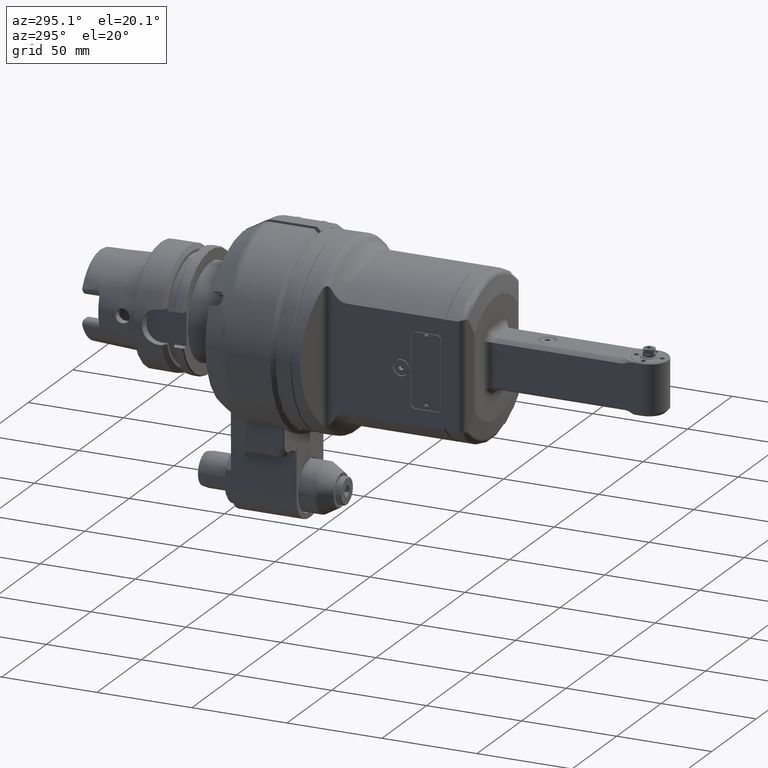
[diagram: clean part render]
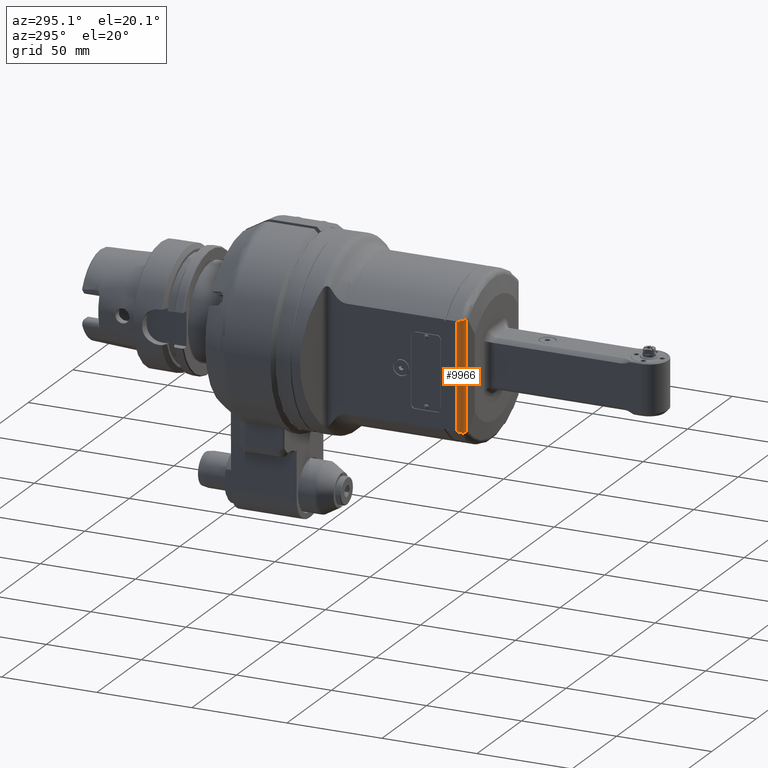
[diagram: same view with one face highlighted and labeled with its STEP entity id]
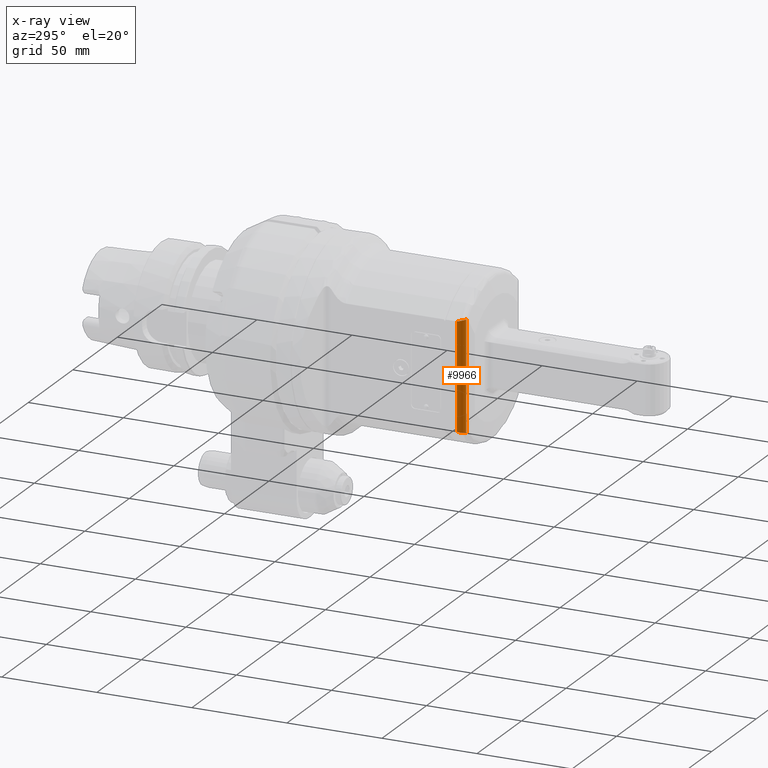
[diagram: x-ray of the same camera — body ghosted, the highlighted face saturated]
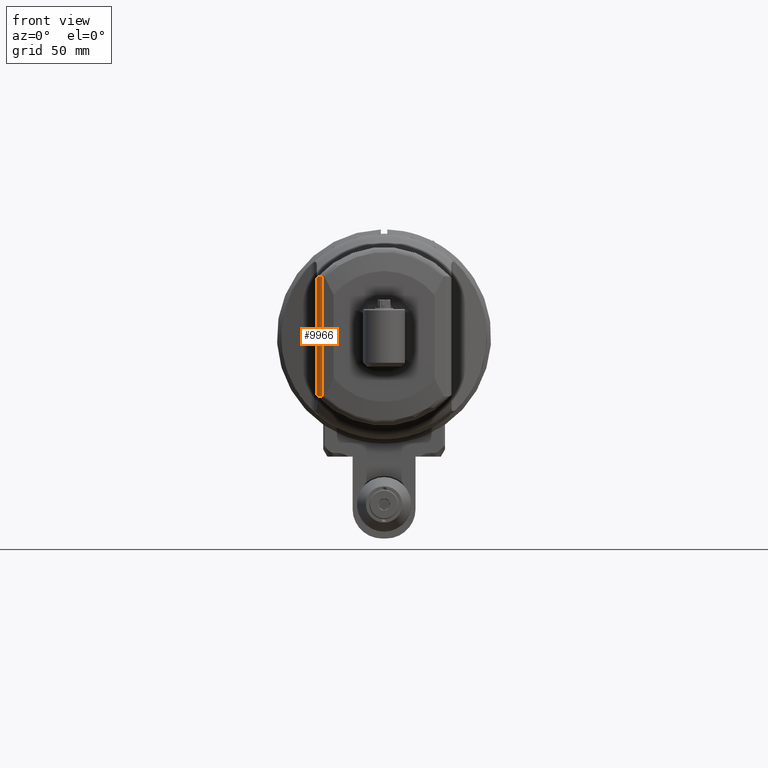
[diagram: same view with one face highlighted and labeled with its STEP entity id]
A machine part, auxiliary view. The second image highlights one B-rep face of the part: STEP entity #9966.
The next image is the same camera in x-ray: the body ghosted, the highlighted face saturated — about 0% of this face is hidden behind the body in this view.
A second angle (front view) of the same face is appended — the face is thin or edge-on in the first view.
In plain terms, the highlighted cylindrical surface (edge-blend (fillet) strip) has radius 4 mm, axis along (0, 0, 1).
Its self-contained STEP definition (entity closure, byte-faithful):
#1288=FACE_OUTER_BOUND('',#1913,.T.);
#1913=EDGE_LOOP('',(#8620,#8621,#8622,#8623,#8624,#8625));
#2682=B_SPLINE_CURVE_WITH_KNOTS('',3,(#58783,#58784,#58785,#58786,#58787,
#58788,#58789,#58790,#58791,#58792),.UNSPECIFIED.,.F.,.F.,(4,2,2,2,4),(3.13444354131986,
3.19139764599685,3.33701634573695,3.50794324143168,3.52444521729111),
 .UNSPECIFIED.);
#2683=B_SPLINE_CURVE_WITH_KNOTS('',3,(#58798,#58799,#58800,#58801,#58802,
#58803),.UNSPECIFIED.,.F.,.F.,(4,2,4),(0.,0.0756691090275133,0.12101803787132),
 .UNSPECIFIED.);
#2684=B_SPLINE_CURVE_WITH_KNOTS('',3,(#58804,#58805,#58806,#58807,#58808,
#58809,#58810,#58811,#58812,#58813),.UNSPECIFIED.,.F.,.F.,(4,2,2,2,4),(4.83732677407685,
4.90122347215597,5.05059715189319,5.14256174424367,5.23157631618292),
 .UNSPECIFIED.);
#2685=B_SPLINE_CURVE_WITH_KNOTS('',3,(#58814,#58815,#58816,#58817,#58818,
#58819),.UNSPECIFIED.,.F.,.F.,(4,2,4),(-2.83702620331015,-2.76135709428264,
-2.71600816543477),.UNSPECIFIED.);
#3222=LINE('',#58735,#3894);
#3223=LINE('',#58796,#3895);
#3894=VECTOR('',#13263,57.36932648324);
#3895=VECTOR('',#13274,55.93746508379);
#4785=VERTEX_POINT('',#58725);
#4786=VERTEX_POINT('',#58734);
#4791=VERTEX_POINT('',#58781);
#4792=VERTEX_POINT('',#58794);
#4793=VERTEX_POINT('',#58795);
#4794=VERTEX_POINT('',#58797);
#6106=EDGE_CURVE('',#4786,#4785,#3222,.T.);
#6114=EDGE_CURVE('',#4791,#4785,#2682,.T.);
#6115=EDGE_CURVE('',#4792,#4793,#3223,.T.);
#6116=EDGE_CURVE('',#4793,#4794,#2683,.T.);
#6117=EDGE_CURVE('',#4786,#4794,#2684,.T.);
#6118=EDGE_CURVE('',#4792,#4791,#2685,.T.);
#8620=ORIENTED_EDGE('',*,*,#6115,.T.);
#8621=ORIENTED_EDGE('',*,*,#6116,.T.);
#8622=ORIENTED_EDGE('',*,*,#6117,.F.);
#8623=ORIENTED_EDGE('',*,*,#6106,.T.);
#8624=ORIENTED_EDGE('',*,*,#6114,.F.);
#8625=ORIENTED_EDGE('',*,*,#6118,.F.);
#9503=CYLINDRICAL_SURFACE('',#10982,4.);
#9966=ADVANCED_FACE('',(#1288),#9503,.T.);
#10982=AXIS2_PLACEMENT_3D('',#58793,#13272,#13273);
#13263=DIRECTION('',(-3.344061198126E-14,-1.,-7.963819816278E-14));
#13272=DIRECTION('center_axis',(0.,-1.,0.));
#13273=DIRECTION('ref_axis',(0.,0.,1.));
#13274=DIRECTION('',(0.,1.,0.));
#58725=CARTESIAN_POINT('',(79.0498514549,-28.68466324162,-29.36808088806));
#58734=CARTESIAN_POINT('',(79.0498514549,28.68466324162,-29.36808088806));
#58735=CARTESIAN_POINT('',(79.0498514549,28.68466324162,-29.36808088806));
#58781=CARTESIAN_POINT('',(76.48270110647,-28.17517633762,-31.81838208244));
#58783=CARTESIAN_POINT('Ctrl Pts',(76.4827011064694,-28.1751763376201,-31.818382082438));
#58784=CARTESIAN_POINT('Ctrl Pts',(76.649984307758,-28.2341315473164,-31.7661772460981));
#58785=CARTESIAN_POINT('Ctrl Pts',(76.8174119750996,-28.2853320466925,-31.7018677750266));
#58786=CARTESIAN_POINT('Ctrl Pts',(77.407380521155,-28.4431816122032,-31.4264181079417));
#58787=CARTESIAN_POINT('Ctrl Pts',(77.8028812622303,-28.5068372562482,-31.1512416310178));
#58788=CARTESIAN_POINT('Ctrl Pts',(78.5480421475911,-28.5958310965684,-30.392099144154));
#58789=CARTESIAN_POINT('Ctrl Pts',(78.8246761056065,-28.6064457373967,-29.9329017395089));
#58790=CARTESIAN_POINT('Ctrl Pts',(79.018017398968,-28.6714656082883,-29.4532785982139));
#58791=CARTESIAN_POINT('Ctrl Pts',(79.0343093390298,-28.6777287385797,-29.4107824892319));
#58792=CARTESIAN_POINT('Ctrl Pts',(79.0498514548637,-28.6846632416608,-29.3680808880534));
#58793=CARTESIAN_POINT('Origin',(75.29108108628,0.,-28.));
#58794=CARTESIAN_POINT('',(75.29108108628,-27.96873254189,-32.));
#58795=CARTESIAN_POINT('',(75.29108108628,27.96873254189,-32.));
#58796=CARTESIAN_POINT('',(75.29108108628,-27.96873254189,-32.));
#58797=CARTESIAN_POINT('',(76.48270110643,28.17517633761,-31.81838208245));
#58798=CARTESIAN_POINT('Ctrl Pts',(75.29108108628,27.968732541894,-32.));
#58799=CARTESIAN_POINT('Ctrl Pts',(75.543311449705,27.968732541894,-32.));
#58800=CARTESIAN_POINT('Ctrl Pts',(75.7979632324274,27.9965182509185,-31.9757747892837));
#58801=CARTESIAN_POINT('Ctrl Pts',(76.1944045138309,28.0832209934543,-31.8996013926811));
#58802=CARTESIAN_POINT('Ctrl Pts',(76.3405886984433,28.1250920090635,-31.8627317538065));
#58803=CARTESIAN_POINT('Ctrl Pts',(76.4827011064312,28.1751763376066,-31.81838208245));
#58804=CARTESIAN_POINT('Ctrl Pts',(79.0498514548637,28.6846632416608,-29.3680808880534));
#58805=CARTESIAN_POINT('Ctrl Pts',(78.9920061515183,28.6588541151196,-29.5270095114084));
#58806=CARTESIAN_POINT('Ctrl Pts',(78.9215612568191,28.6413120827961,-29.6891878564091));
#58807=CARTESIAN_POINT('Ctrl Pts',(78.6376919837193,28.5936441918003,-30.2326207434695));
#58808=CARTESIAN_POINT('Ctrl Pts',(78.3629131056226,28.5778282679037,-30.6092080308867));
#58809=CARTESIAN_POINT('Ctrl Pts',(77.7754367243114,28.4994180785984,-31.1496840264678));
#58810=CARTESIAN_POINT('Ctrl Pts',(77.5301413536924,28.4588040588049,-31.3282425988941));
#58811=CARTESIAN_POINT('Ctrl Pts',(77.0152728105843,28.3428724255029,-31.6210542606544));
#58812=CARTESIAN_POINT('Ctrl Pts',(76.7511589515582,28.2697882797034,-31.734603210686));
#58813=CARTESIAN_POINT('Ctrl Pts',(76.48270110647,28.1751763376203,-31.8183820824378));
#58814=CARTESIAN_POINT('Ctrl Pts',(75.29108108628,-27.968732541894,-32.));
#58815=CARTESIAN_POINT('Ctrl Pts',(75.5433114497051,-27.968732541894,-32.));
#58816=CARTESIAN_POINT('Ctrl Pts',(75.7979632324274,-27.9965182509185,-31.9757747892837));
#58817=CARTESIAN_POINT('Ctrl Pts',(76.1944045138442,-28.0832209934572,-31.8996013926786));
#58818=CARTESIAN_POINT('Ctrl Pts',(76.3405886984694,-28.125092009071,-31.8627317537999));
#58819=CARTESIAN_POINT('Ctrl Pts',(76.4827011064694,-28.1751763376201,-31.818382082438));